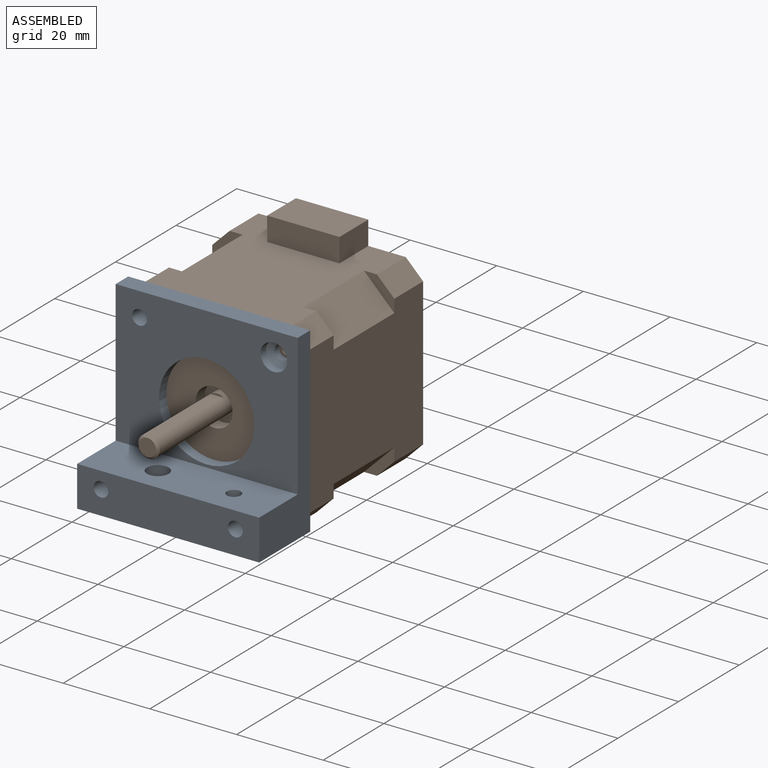
[diagram: assembled view]
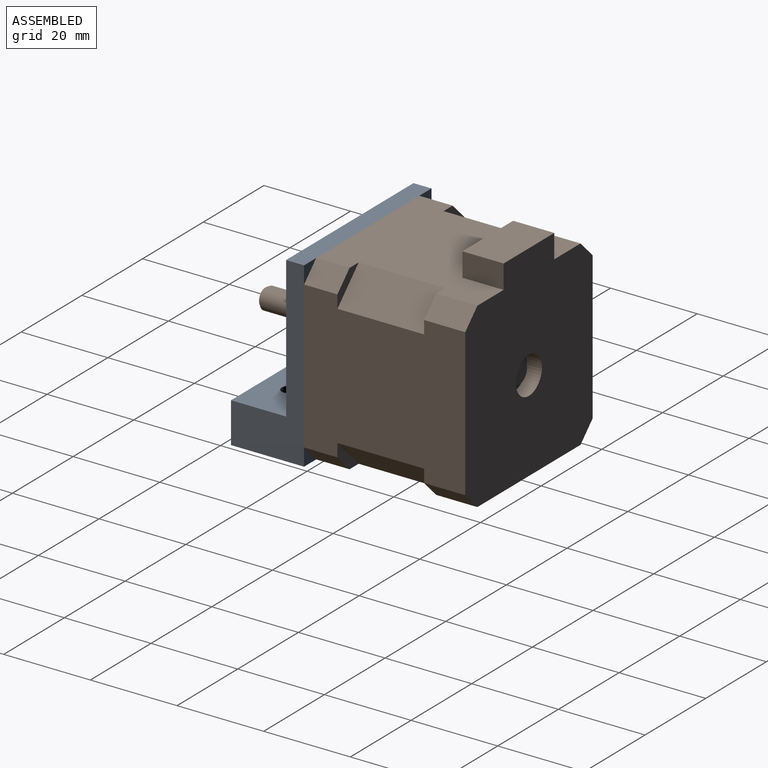
[diagram: assembled view, second angle]
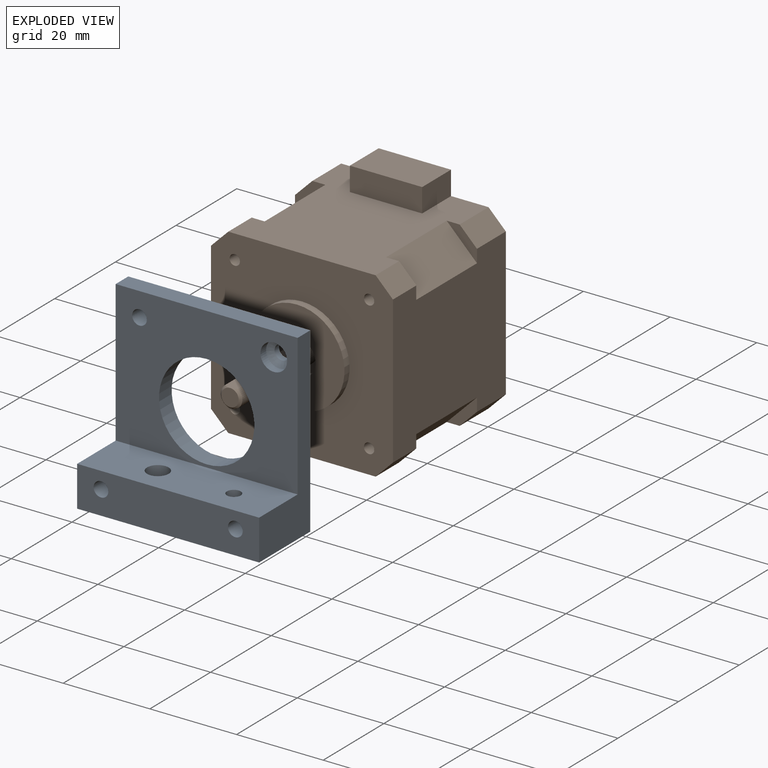
[diagram: exploded view]
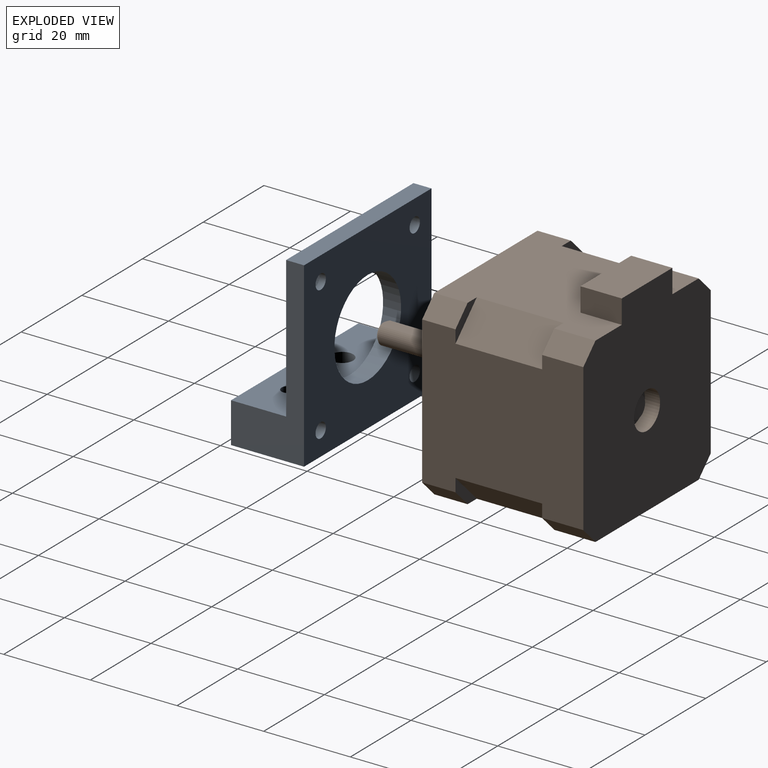
[diagram: exploded view, second angle]
ASSEMBLY  parts=2 mates=2
PART A: 17 faces, bbox 42x16.9x42 mm
  f0: cylinder r=1.7mm len=3.4mm, axis (0,1,0), area 15.7mm2, adj f6,f13
  f1: plane 42x4.15mm, normal (0,0,1), area 174.3mm2, adj f2,f3,f5,f6
  f2: plane 42x16.85mm, normal (-1,0,0), area 293mm2, adj f1,f5,f6,f7,f8,f9
  f3: plane 42x16.85mm, normal (1,0,0), area 293mm2, adj f1,f5,f6,f7,f8,f9
  f4: cylinder r=11mm len=22mm, axis (0,1,0), area 286.8mm2, adj f5,f6
  f5: plane 42x32.65mm, normal (0,-1,0), area 952.4mm2, adj f1,f2,f3,f4,f7,f12,f14
  f6: plane 42x42mm, normal (0,1,0), area 1347.6mm2, adj f0,f1,f2,f3,f4,f8,f10,f11
  f7: plane 42x12.7mm, normal (0,0,1), area 505.7mm2, adj f2,f3,f5,f9,f15,f16
  f8: plane 42x16.85mm, normal (0,0,-1), area 680mm2, adj f2,f3,f6,f9,f15,f16
  f9: plane 42x9.35mm, normal (0,-1,0), area 374.5mm2, adj f2,f3,f7,f8,f10,f11
  f10: cylinder r=1.7mm len=16.85mm, axis (0,1,0), area 180mm2, adj f6,f9
  f11: cylinder r=1.7mm len=16.85mm, axis (0,1,0), area 180mm2, adj f6,f9
  f12: cylinder r=1.7mm len=4.15mm, axis (0,1,0), area 44.3mm2, adj f5,f6
  f13: cone r=0mm half-angle=59deg, axis (0,-1,0), area 24.1mm2, adj f0,f14
  f14: cylinder r=3.08mm len=6.15mm, axis (0,-1,0), area 35.7mm2, adj f5,f13
  f15: cylinder r=1.6mm len=9.35mm, axis (0,0,-1), area 94mm2, adj f7,f8
  f16: cylinder r=2.5mm len=9.35mm, axis (0,0,-1), area 146.9mm2, adj f7,f8
PART B: 51 faces, bbox 42x60.9x47.5 mm
  f0: cylinder r=2.5mm len=24.5mm, axis (0,-1,0), area 312.5mm2, adj f38,f40,f41,f42
  f1: cylinder r=4.3mm len=8.6mm, axis (0,-1,0), area 94.6mm2, adj f26,f32
  f2: plane 37.2x34mm, normal (0,0,1), area 986.1mm2, adj f3,f5,f6,f12,f14,f15,f18,f19
  f3: plane 7x7mm, normal (0,1,0), area 16.5mm2, adj f2,f6,f7,f18
  f4: plane 7x7mm, normal (0,1,0), area 16.5mm2, adj f9,f10,f11,f16
  f5: plane 7x7mm, normal (0,1,0), area 16.5mm2, adj f2,f11,f12,f15
  f6: plane 7.7x4mm, normal (-0.71,0,0.71), area 43.6mm2, adj f2,f3,f7,f14
  f7: plane 37.2x34mm, normal (-1,0,0), area 1144.8mm2, adj f3,f6,f8,f13,f14,f17,f18,f20
  f8: plane 7.7x4mm, normal (-0.71,0,-0.71), area 43.6mm2, adj f7,f9,f13,f14
  f9: plane 37.2x34mm, normal (0,0,-1), area 1144.8mm2, adj f4,f8,f10,f13,f14,f16,f17,f20
  f10: plane 7.7x4mm, normal (0.71,0,-0.71), area 43.6mm2, adj f4,f9,f11,f14
  f11: plane 37.2x34mm, normal (1,0,0), area 1144.8mm2, adj f4,f5,f10,f12,f14,f15,f16,f19
  f12: plane 7.7x4mm, normal (0.71,0,0.71), area 43.6mm2, adj f2,f5,f11,f14
  f13: plane 7x7mm, normal (0,1,0), area 16.5mm2, adj f7,f8,f9,f17
  f14: plane 42x42mm, normal (0,-1,0), area 1333.8mm2, adj f2,f6,f7,f8,f9,f10,f11,f12
  f15: plane 20x7mm, normal (0.71,0,0.71), area 198mm2, adj f2,f5,f11,f19
  f16: plane 20x7mm, normal (0.71,0,-0.71), area 198mm2, adj f4,f9,f11,f27
  f17: plane 20x7mm, normal (-0.71,0,-0.71), area 198mm2, adj f7,f9,f13,f20
  f18: plane 20x7mm, normal (-0.71,0,0.71), area 198mm2, adj f2,f3,f7,f21
  f19: plane 7x7mm, normal (0,-1,0), area 16.5mm2, adj f2,f11,f15,f25
  f20: plane 7x7mm, normal (0,-1,0), area 16.5mm2, adj f7,f9,f17,f23
  f21: plane 7x7mm, normal (0,-1,0), area 16.5mm2, adj f2,f7,f18,f22
  f22: plane 9.5x4mm, normal (-0.71,0,0.71), area 53.7mm2, adj f2,f7,f21,f26
  f23: plane 9.5x4mm, normal (-0.71,0,-0.71), area 53.7mm2, adj f7,f9,f20,f26
  f24: plane 9.5x4mm, normal (0.71,0,-0.71), area 53.7mm2, adj f9,f11,f26,f27
  f25: plane 9.5x4mm, normal (0.71,0,0.71), area 53.7mm2, adj f2,f11,f19,f26
  f26: plane 47.5x42mm, normal (0,1,0), area 1765.8mm2, adj f1,f2,f7,f9,f11,f22,f23,f24
  f27: plane 7x7mm, normal (0,-1,0), area 16.5mm2, adj f9,f11,f16,f24
  f28: plane 9.5x5.5mm, normal (-1,0,0), area 52.2mm2, adj f2,f26,f30,f31
  f29: plane 9.5x5.5mm, normal (1,0,0), area 52.2mm2, adj f2,f26,f30,f31
  f30: plane 16.7x9.5mm, normal (0,0,1), area 158.6mm2, adj f26,f28,f29,f31
  f31: plane 16.7x5.5mm, normal (0,-1,0), area 91.8mm2, adj f2,f28,f29,f30
  f32: plane 8.6x8.6mm, normal (0,1,0), area 38.5mm2, adj f1,f33
  f33: cylinder r=2.5mm len=5mm, axis (0,-1,0), area 20.4mm2, adj f32,f34
  f34: plane 5x5mm, normal (0,1,0), area 19.6mm2, adj f33
  f35: cylinder r=4.3mm len=8.6mm, axis (0,1,0), area 81.1mm2, adj f37,f38
  f36: cylinder r=11mm len=22mm, axis (0,1,0), area 117.5mm2, adj f14,f37
  f37: plane 22x22mm, normal (0,-1,0), area 322mm2, adj f35,f36
  f38: plane 8.6x8.6mm, normal (0,-1,0), area 38.5mm2, adj f0,f35
  f39: plane 4x4mm, normal (0,-1,0), area 12.6mm2, adj f40
  f40: cone r=2mm half-angle=45deg, axis (0,1,0), area 8.6mm2, adj f0,f39,f41
  f41: plane 23x3mm, normal (0,0,1), area 68.5mm2, adj f0,f40,f42
  f42: plane 3x0.5mm, normal (0,-1,0), area 1mm2, adj f0,f41
  f43: cone r=0mm half-angle=59deg, axis (0,-1,0), area 5.3mm2, adj f44
  f44: cylinder r=1.2mm len=15mm, axis (0,-1,0), area 113.1mm2, adj f14,f43
  f45: cone r=0mm half-angle=59deg, axis (0,-1,0), area 5.3mm2, adj f46
  f46: cylinder r=1.2mm len=15mm, axis (0,-1,0), area 113.1mm2, adj f14,f45
  f47: cone r=0mm half-angle=59deg, axis (0,-1,0), area 5.3mm2, adj f48
  f48: cylinder r=1.2mm len=15mm, axis (0,-1,0), area 113.1mm2, adj f14,f47
  f49: cone r=0mm half-angle=59deg, axis (0,-1,0), area 5.3mm2, adj f50
  f50: cylinder r=1.2mm len=15mm, axis (0,-1,0), area 113.1mm2, adj f14,f49
PLACE A at identity fixed
PLACE B at identity
MATE revolute B.f43 <-> A.f0  axis (0,-1,0) through (15.5,0,15.5)mm
MATE revolute B.f49 <-> A.f12  axis (0,-1,0) through (-15.5,0,15.5)mm
